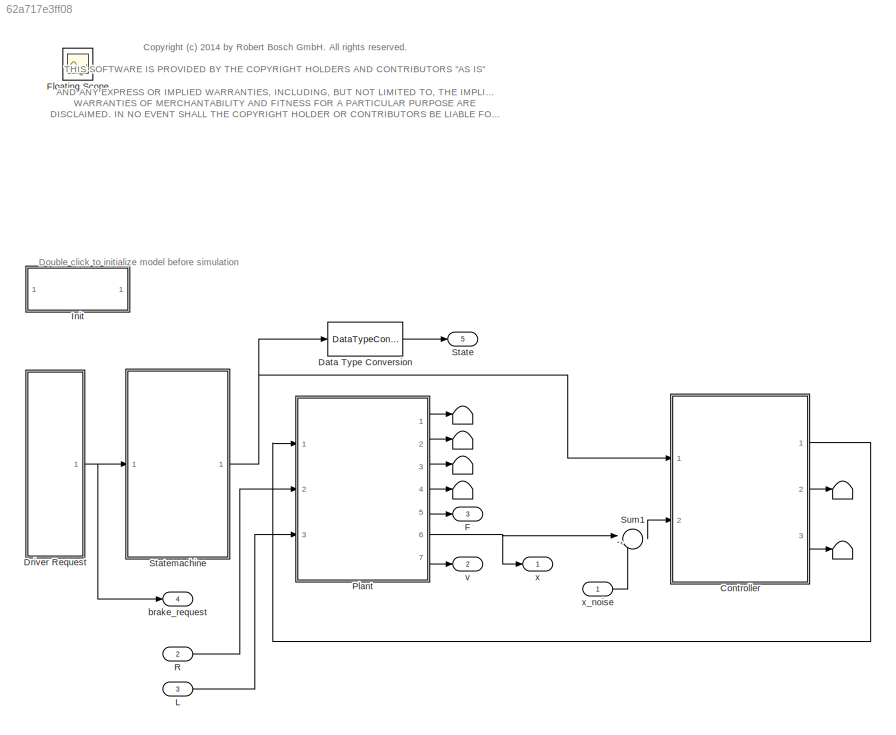
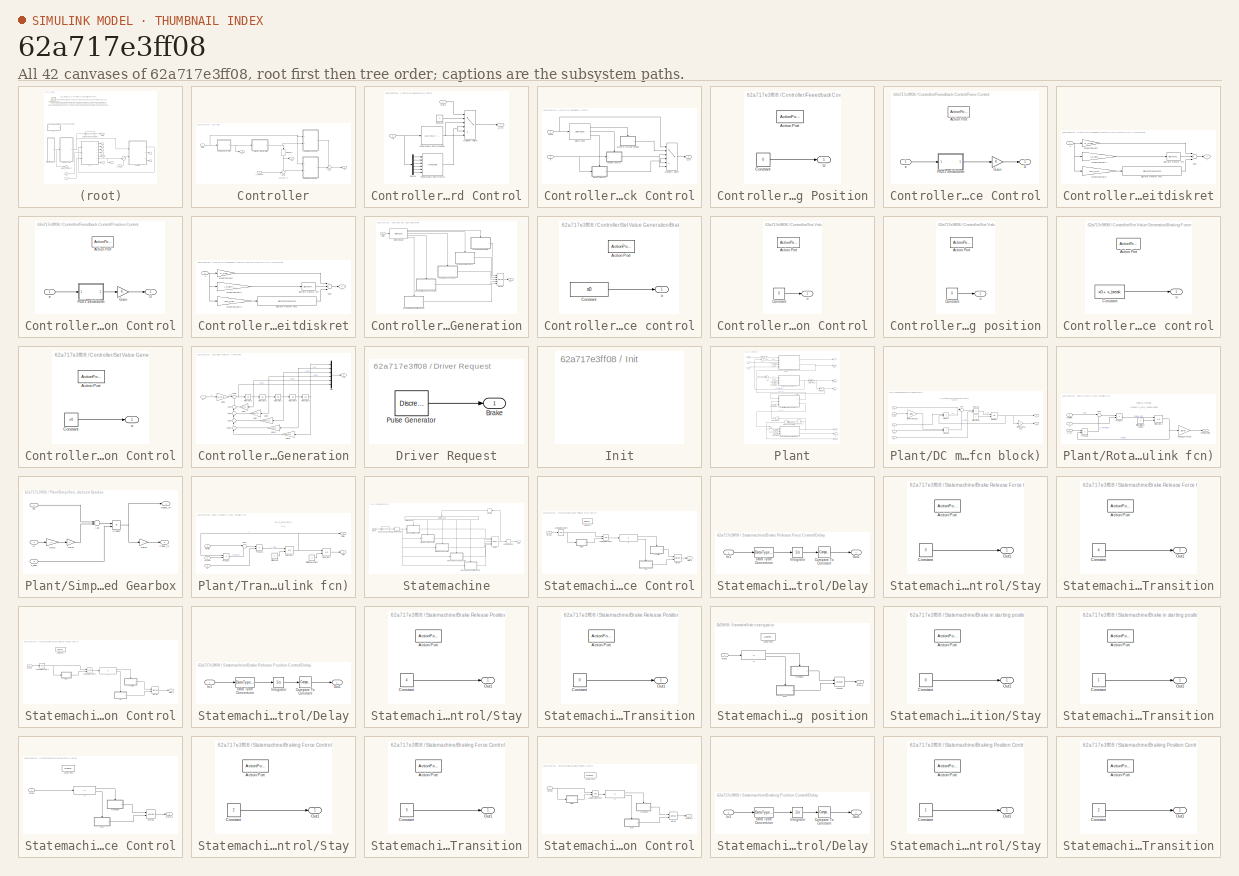
[diagram: thumbnail index - all 42 canvases of the model, root first then tree order]
MODEL slx_62a717e3ff08
KIND model
BLOCK [Terminator]   
BLOCK [Terminator]    
BLOCK [Terminator]     
BLOCK [Terminator]       
BLOCK [Terminator]         
BLOCK [Terminator]           
BLOCK [SubSystem] Controller
  FunctionWithSeparateData = off
  MaskHideContents = off
  MinAlgLoopOccurrences = off
  Opaque = off
  Ports = [2, 3]
  PropExecContextOutsideSubsystem = off
  RTWSystemCode = Auto
  RequestExecContextInheritance = off
BLOCK [SubSystem] Controller/Feedfoward Control
  FunctionWithSeparateData = off
  MaskHideContents = off
  MinAlgLoopOccurrences = off
  Opaque = off
  Ports = [2, 1]
  PropExecContextOutsideSubsystem = off
  RTWSystemCode = Auto
  RequestExecContextInheritance = off
BLOCK [Constant] Controller/Feedfoward Control/Constant
  Value = 0
BLOCK [Demux] Controller/Feedfoward Control/Demux
  DisplayOption = bar
  Outputs = 6
  Ports = [1, 6]
BLOCK [S-Function] Controller/Feedfoward Control/Feedforward Control Force
  EnableBusSupport = off
  FunctionName = InverseEMBforce
  Parameters = R,L,K,J,dvrot,m,dvtrans,cgear,i,cbreak,x0,xic
  Ports = [6, 1]
BLOCK [Fcn] Controller/Feedfoward Control/Feedforward Control Position
  Expr = (a(1)*u[6] + a(2)*u[5] + a(3)*u[4] + a(4)*u[3]  + a(5)*u[2] + a(6)*u[1] )/b
BLOCK [MultiPortSwitch] Controller/Feedfoward Control/Multiport Switch
  DataPortOrder = Zero-based contiguous
  InputSameDT = off
  Inputs = 5
  Ports = [6, 1]
  SaturateOnIntegerOverflow = off
  zeroidx = on
BLOCK [Inport] Controller/Feedfoward Control/State
  IconDisplay = Port number
BLOCK [Outport] Controller/Feedfoward Control/U_ffw
  IconDisplay = Port number
BLOCK [Inport] Controller/Feedfoward Control/yd
  IconDisplay = Port number
  Port = 2
BLOCK [SubSystem] Controller/Feeedback Control
  FunctionWithSeparateData = off
  MaskHideContents = off
  MinAlgLoopOccurrences = off
  Opaque = off
  Ports = [2, 1]
  PropExecContextOutsideSubsystem = off
  RTWSystemCode = Auto
  RequestExecContextInheritance = off
BLOCK [SubSystem] Controller/Feeedback Control/Brakin in starting Position
  FunctionWithSeparateData = off
  MaskHideContents = off
  MinAlgLoopOccurrences = off
  Opaque = off
  Ports = [0, 1, 0, 0, 0, 0, 0, 1]
  PropExecContextOutsideSubsystem = off
  RTWSystemCode = Auto
  RequestExecContextInheritance = off
  TreatAsAtomicUnit = on
BLOCK [ActionPort] Controller/Feeedback Control/Brakin in starting Position/Action Port
  ActionType = case
BLOCK [Constant] Controller/Feeedback Control/Brakin in starting Position/Constant
  Value = 0
BLOCK [Outport] Controller/Feeedback Control/Brakin in starting Position/U
  IconDisplay = Port number
BLOCK [SubSystem] Controller/Feeedback Control/Force Control
  FunctionWithSeparateData = off
  MaskHideContents = off
  MinAlgLoopOccurrences = off
  Opaque = off
  Ports = [1, 1, 0, 0, 0, 0, 0, 1]
  PropExecContextOutsideSubsystem = off
  RTWSystemCode = Auto
  RequestExecContextInheritance = off
  TreatAsAtomicUnit = on
BLOCK [ActionPort] Controller/Feeedback Control/Force Control/Action Port
  ActionType = case
  InitializeStates = reset
BLOCK [Gain] Controller/Feeedback Control/Force Control/Gain
  OutDataTypeStr = Inherit: Inherit via internal rule
  ParamDataTypeStr = Inherit: Inherit via internal rule
  SaturateOnIntegerOverflow = off
BLOCK [SubSystem] Controller/Feeedback Control/Force Control/PIDT1 zeitdiskret
  FunctionWithSeparateData = off
  MaskHideContents = off
  MinAlgLoopOccurrences = off
  Opaque = off
  Ports = [1, 1]
  PropExecContextOutsideSubsystem = off
  RTWSystemCode = Auto
  RequestExecContextInheritance = off
BLOCK [DiscreteTransferFcn] Controller/Feeedback Control/Force Control/PIDT1 zeitdiskret/Discrete Transfer Fcn
  Denominator = [1 -1]
  InputPortMap = u0
  Numerator = [1 1]
  Ports = [1, 1]
  SampleTime = T_abtast
BLOCK [DiscreteTransferFcn] Controller/Feeedback Control/Force Control/PIDT1 zeitdiskret/Discrete Transfer Fcn1
  Denominator = [1+1/tan(T_abtast/2/1e-3) 1-1/tan(T_abtast/2/1e-3)]
  InputPortMap = u0
  Numerator = [1 -1]
  Ports = [1, 1]
  SampleTime = T_abtast
BLOCK [Sum] Controller/Feeedback Control/Force Control/PIDT1 zeitdiskret/Sum
  InputSameDT = off
  Inputs = 3
  OutDataTypeStr = Inherit: Inherit via internal rule
  Ports = [3, 1]
  SaturateOnIntegerOverflow = off
BLOCK [Gain] Controller/Feeedback Control/Force Control/PIDT1 zeitdiskret/proportinal part
  Gain = P_Kraft
  OutDataTypeStr = Inherit: Inherit via internal rule
  ParamDataTypeStr = Inherit: Inherit via internal rule
  SaturateOnIntegerOverflow = off
BLOCK [Gain] Controller/Feeedback Control/Force Control/PIDT1 zeitdiskret/proportinal part1
  Gain = I_Kraft*T_abtast/2
  OutDataTypeStr = Inherit: Inherit via internal rule
  ParamDataTypeStr = Inherit: Inherit via internal rule
  SaturateOnIntegerOverflow = off
BLOCK [Gain] Controller/Feeedback Control/Force Control/PIDT1 zeitdiskret/proportinal part2
  Gain = 2*D_Kraft/T_abtast
  OutDataTypeStr = Inherit: Inherit via internal rule
  ParamDataTypeStr = Inherit: Inherit via internal rule
  SaturateOnIntegerOverflow = off
BLOCK [Inport] Controller/Feeedback Control/Force Control/PIDT1 zeitdiskret/u
  IconDisplay = Port number
BLOCK [Outport] Controller/Feeedback Control/Force Control/PIDT1 zeitdiskret/y
  IconDisplay = Port number
BLOCK [Outport] Controller/Feeedback Control/Force Control/U
  IconDisplay = Port number
BLOCK [Inport] Controller/Feeedback Control/Force Control/e
  IconDisplay = Port number
BLOCK [MultiPortSwitch] Controller/Feeedback Control/Multiport Switch
  DataPortOrder = Zero-based contiguous
  InputSameDT = off
  Inputs = 5
  Ports = [6, 1]
  SaturateOnIntegerOverflow = off
  zeroidx = on
BLOCK [SubSystem] Controller/Feeedback Control/Position Control
  FunctionWithSeparateData = off
  MaskHideContents = off
  MinAlgLoopOccurrences = off
  Opaque = off
  Ports = [1, 1, 0, 0, 0, 0, 0, 1]
  PropExecContextOutsideSubsystem = off
  RTWSystemCode = Auto
  RequestExecContextInheritance = off
  TreatAsAtomicUnit = on
BLOCK [ActionPort] Controller/Feeedback Control/Position Control/Action Port
  ActionType = case
  InitializeStates = reset
BLOCK [Gain] Controller/Feeedback Control/Position Control/Gain
  OutDataTypeStr = Inherit: Inherit via internal rule
  ParamDataTypeStr = Inherit: Inherit via internal rule
  SaturateOnIntegerOverflow = off
BLOCK [SubSystem] Controller/Feeedback Control/Position Control/PIDT1 zeitdiskret
  FunctionWithSeparateData = off
  MaskHideContents = off
  MinAlgLoopOccurrences = off
  Opaque = off
  Ports = [1, 1]
  PropExecContextOutsideSubsystem = off
  RTWSystemCode = Auto
  RequestExecContextInheritance = off
BLOCK [DiscreteTransferFcn] Controller/Feeedback Control/Position Control/PIDT1 zeitdiskret/Discrete Transfer Fcn
  Denominator = [1 -1]
  InputPortMap = u0
  Numerator = [1 1]
  Ports = [1, 1]
  SampleTime = T_abtast
BLOCK [DiscreteTransferFcn] Controller/Feeedback Control/Position Control/PIDT1 zeitdiskret/Discrete Transfer Fcn1
  Denominator = [1+1/tan(T_abtast/2/1e-3) 1-1/tan(T_abtast/2/1e-3)]
  InputPortMap = u0
  Numerator = [1 -1]
  Ports = [1, 1]
  SampleTime = T_abtast
BLOCK [Sum] Controller/Feeedback Control/Position Control/PIDT1 zeitdiskret/Sum
  InputSameDT = off
  Inputs = 3
  OutDataTypeStr = Inherit: Inherit via internal rule
  Ports = [3, 1]
  SaturateOnIntegerOverflow = off
BLOCK [Gain] Controller/Feeedback Control/Position Control/PIDT1 zeitdiskret/proportinal part
  Gain = P_Pos
  OutDataTypeStr = Inherit: Inherit via internal rule
  ParamDataTypeStr = Inherit: Inherit via internal rule
  SaturateOnIntegerOverflow = off
BLOCK [Gain] Controller/Feeedback Control/Position Control/PIDT1 zeitdiskret/proportinal part1
  Gain = I_Pos*T_abtast/2
  OutDataTypeStr = Inherit: Inherit via internal rule
  ParamDataTypeStr = Inherit: Inherit via internal rule
  SaturateOnIntegerOverflow = off
BLOCK [Gain] Controller/Feeedback Control/Position Control/PIDT1 zeitdiskret/proportinal part2
  Gain = 2*D_Pos/T_abtast
  OutDataTypeStr = Inherit: Inherit via internal rule
  ParamDataTypeStr = Inherit: Inherit via internal rule
  SaturateOnIntegerOverflow = off
BLOCK [Inport] Controller/Feeedback Control/Position Control/PIDT1 zeitdiskret/u
  IconDisplay = Port number
BLOCK [Outport] Controller/Feeedback Control/Position Control/PIDT1 zeitdiskret/y
  IconDisplay = Port number
BLOCK [Outport] Controller/Feeedback Control/Position Control/U
  IconDisplay = Port number
BLOCK [Inport] Controller/Feeedback Control/Position Control/e
  IconDisplay = Port number
BLOCK [Inport] Controller/Feeedback Control/State
  IconDisplay = Port number
BLOCK [SwitchCase] Controller/Feeedback Control/Switch Case
  CaseConditions = {0,[1,4],[2,3]}
  Ports = [1, 3]
  SampleTime = T_abtast
  ShowDefaultCase = off
BLOCK [Outport] Controller/Feeedback Control/U_fb
  IconDisplay = Port number
BLOCK [Inport] Controller/Feeedback Control/e
  IconDisplay = Port number
  Port = 2
BLOCK [Selector] Controller/Selector1
  IndexOptions = Index vector (dialog)
  Indices = [1]
  InputPortWidth = 6
  OutputSizes = 1
  Ports = [1, 1]
BLOCK [SubSystem] Controller/Set Value Generation
  FunctionWithSeparateData = off
  MaskHideContents = off
  MinAlgLoopOccurrences = off
  Opaque = off
  Ports = [1, 1]
  PropExecContextOutsideSubsystem = off
  RTWSystemCode = Auto
  RequestExecContextInheritance = off
BLOCK [SubSystem] Controller/Set Value Generation/Brake Release Force control
  FunctionWithSeparateData = off
  MaskHideContents = off
  MinAlgLoopOccurrences = off
  Opaque = off
  Ports = [0, 1, 0, 0, 0, 0, 0, 1]
  PropExecContextOutsideSubsystem = off
  RTWSystemCode = Auto
  RequestExecContextInheritance = off
  TreatAsAtomicUnit = on
BLOCK [ActionPort] Controller/Set Value Generation/Brake Release Force control/Action Port
  ActionType = case
BLOCK [Constant] Controller/Set Value Generation/Brake Release Force control/Constant
  Value = x0
BLOCK [Outport] Controller/Set Value Generation/Brake Release Force control/u
  IconDisplay = Port number
BLOCK [SubSystem] Controller/Set Value Generation/Brake Release Position Control
  FunctionWithSeparateData = off
  MaskHideContents = off
  MinAlgLoopOccurrences = off
  Opaque = off
  Ports = [0, 1, 0, 0, 0, 0, 0, 1]
  PropExecContextOutsideSubsystem = off
  RTWSystemCode = Auto
  RequestExecContextInheritance = off
  TreatAsAtomicUnit = on
BLOCK [ActionPort] Controller/Set Value Generation/Brake Release Position Control/Action Port
  ActionType = case
BLOCK [Constant] Controller/Set Value Generation/Brake Release Position Control/Constant
  Value = 0
BLOCK [Outport] Controller/Set Value Generation/Brake Release Position Control/u
  IconDisplay = Port number
BLOCK [SubSystem] Controller/Set Value Generation/Brake in starting position
  FunctionWithSeparateData = off
  MaskHideContents = off
  MinAlgLoopOccurrences = off
  Opaque = off
  Ports = [0, 1, 0, 0, 0, 0, 0, 1]
  PropExecContextOutsideSubsystem = off
  RTWSystemCode = Auto
  RequestExecContextInheritance = off
  TreatAsAtomicUnit = on
BLOCK [ActionPort] Controller/Set Value Generation/Brake in starting position/Action Port
  ActionType = case
BLOCK [Constant] Controller/Set Value Generation/Brake in starting position/Constant
  Value = 0
BLOCK [Outport] Controller/Set Value Generation/Brake in starting position/u
  IconDisplay = Port number
BLOCK [SubSystem] Controller/Set Value Generation/Braking Force control
  FunctionWithSeparateData = off
  MaskHideContents = off
  MinAlgLoopOccurrences = off
  Opaque = off
  Ports = [0, 1, 0, 0, 0, 0, 0, 1]
  PropExecContextOutsideSubsystem = off
  RTWSystemCode = Auto
  RequestExecContextInheritance = off
  TreatAsAtomicUnit = on
BLOCK [ActionPort] Controller/Set Value Generation/Braking Force control/Action Port
  ActionType = case
BLOCK [Constant] Controller/Set Value Generation/Braking Force control/Constant
  Value = x0 + x_break
BLOCK [Outport] Controller/Set Value Generation/Braking Force control/u
  IconDisplay = Port number
BLOCK [SubSystem] Controller/Set Value Generation/Braking Position Control
  FunctionWithSeparateData = off
  MaskHideContents = off
  MinAlgLoopOccurrences = off
  Opaque = off
  Ports = [0, 1, 0, 0, 0, 0, 0, 1]
  PropExecContextOutsideSubsystem = off
  RTWSystemCode = Auto
  RequestExecContextInheritance = off
  TreatAsAtomicUnit = on
BLOCK [ActionPort] Controller/Set Value Generation/Braking Position Control/Action Port
  ActionType = case
BLOCK [Constant] Controller/Set Value Generation/Braking Position Control/Constant
  Value = x0
BLOCK [Outport] Controller/Set Value Generation/Braking Position Control/u
  IconDisplay = Port number
BLOCK [Merge] Controller/Set Value Generation/Merge
  Inputs = 5
  Ports = [5, 1]
BLOCK [Inport] Controller/Set Value Generation/State
  IconDisplay = Port number
BLOCK [SwitchCase] Controller/Set Value Generation/Switch Set Value
  CaseConditions = {0,1,2,3,4}
  Ports = [1, 5]
  ShowDefaultCase = off
BLOCK [Outport] Controller/Set Value Generation/w
  IconDisplay = Port number
BLOCK [Inport] Controller/State
  IconDisplay = Port number
BLOCK [Sum] Controller/Sum
  IconShape = round
  InputSameDT = off
  Inputs = ++|
  OutDataTypeStr = Inherit: Inherit via internal rule
  Ports = [2, 1]
  SaturateOnIntegerOverflow = off
BLOCK [Sum] Controller/Sum1
  IconShape = round
  InputSameDT = off
  Inputs = +-|
  OutDataTypeStr = Inherit: Inherit via internal rule
  Ports = [2, 1]
  SaturateOnIntegerOverflow = off
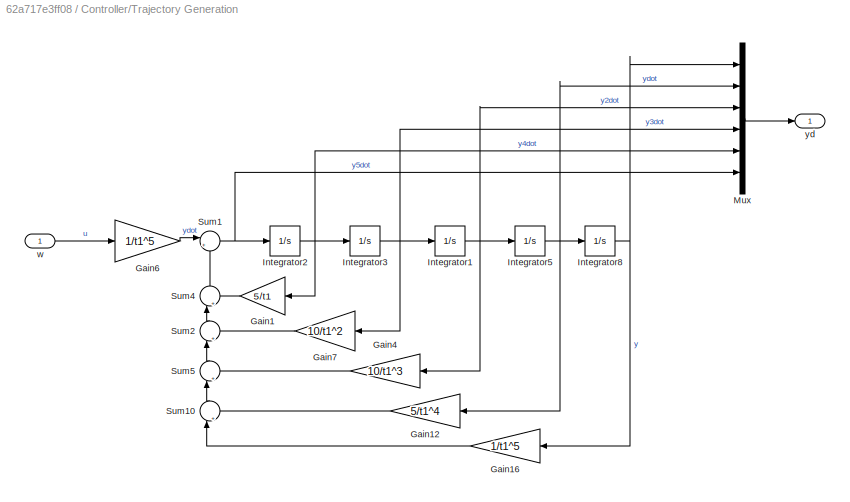
BLOCK [SubSystem] Controller/Trajectory Generation
  FunctionWithSeparateData = off
  MaskHideContents = off
  MinAlgLoopOccurrences = off
  Opaque = off
  Ports = [1, 1]
  PropExecContextOutsideSubsystem = off
  RTWSystemCode = Auto
  RequestExecContextInheritance = off
BLOCK [Gain] Controller/Trajectory Generation/Gain1
  Gain = 5/t1
  OutDataTypeStr = Inherit: Inherit via internal rule
  ParamDataTypeStr = Inherit: Inherit via internal rule
  SaturateOnIntegerOverflow = off
BLOCK [Gain] Controller/Trajectory Generation/Gain12
  Gain = 5/t1^4
  OutDataTypeStr = Inherit: Inherit via internal rule
  ParamDataTypeStr = Inherit: Inherit via internal rule
  SaturateOnIntegerOverflow = off
BLOCK [Gain] Controller/Trajectory Generation/Gain16
  Gain = 1/t1^5
  OutDataTypeStr = Inherit: Inherit via internal rule
  ParamDataTypeStr = Inherit: Inherit via internal rule
  SaturateOnIntegerOverflow = off
BLOCK [Gain] Controller/Trajectory Generation/Gain4
  Gain = 10/t1^3
  OutDataTypeStr = Inherit: Inherit via internal rule
  ParamDataTypeStr = Inherit: Inherit via internal rule
  SaturateOnIntegerOverflow = off
BLOCK [Gain] Controller/Trajectory Generation/Gain6
  Gain = 1/t1^5
  OutDataTypeStr = Inherit: Inherit via internal rule
  ParamDataTypeStr = Inherit: Inherit via internal rule
  SaturateOnIntegerOverflow = off
BLOCK [Gain] Controller/Trajectory Generation/Gain7
  Gain = 10/t1^2
  OutDataTypeStr = Inherit: Inherit via internal rule
  ParamDataTypeStr = Inherit: Inherit via internal rule
  SaturateOnIntegerOverflow = off
BLOCK [Integrator] Controller/Trajectory Generation/Integrator1
  Ports = [1, 1]
BLOCK [Integrator] Controller/Trajectory Generation/Integrator2
  Ports = [1, 1]
BLOCK [Integrator] Controller/Trajectory Generation/Integrator3
  Ports = [1, 1]
BLOCK [Integrator] Controller/Trajectory Generation/Integrator5
  Ports = [1, 1]
BLOCK [Integrator] Controller/Trajectory Generation/Integrator8
  Ports = [1, 1]
BLOCK [Mux] Controller/Trajectory Generation/Mux
  DisplayOption = bar
  Inputs = 6
  Ports = [6, 1]
BLOCK [Sum] Controller/Trajectory Generation/Sum1
  IconShape = round
  InputSameDT = off
  Inputs = |+-
  OutDataTypeStr = Inherit: Inherit via internal rule
  Ports = [2, 1]
  SaturateOnIntegerOverflow = off
BLOCK [Sum] Controller/Trajectory Generation/Sum10
  IconShape = round
  InputSameDT = off
  Inputs = |++
  OutDataTypeStr = Inherit: Inherit via internal rule
  Ports = [2, 1]
  SaturateOnIntegerOverflow = off
BLOCK [Sum] Controller/Trajectory Generation/Sum2
  IconShape = round
  InputSameDT = off
  Inputs = |++
  OutDataTypeStr = Inherit: Inherit via internal rule
  Ports = [2, 1]
  SaturateOnIntegerOverflow = off
BLOCK [Sum] Controller/Trajectory Generation/Sum4
  IconShape = round
  InputSameDT = off
  Inputs = |++
  OutDataTypeStr = Inherit: Inherit via internal rule
  Ports = [2, 1]
  SaturateOnIntegerOverflow = off
BLOCK [Sum] Controller/Trajectory Generation/Sum5
  IconShape = round
  InputSameDT = off
  Inputs = |++
  OutDataTypeStr = Inherit: Inherit via internal rule
  Ports = [2, 1]
  SaturateOnIntegerOverflow = off
BLOCK [Inport] Controller/Trajectory Generation/w
  IconDisplay = Port number
BLOCK [Outport] Controller/Trajectory Generation/yd
  IconDisplay = Port number
BLOCK [Outport] Controller/U
  IconDisplay = Port number
BLOCK [Outport] Controller/w
  IconDisplay = Port number
  Port = 2
BLOCK [Inport] Controller/y_Sensor
  IconDisplay = Port number
  Port = 2
BLOCK [Outport] Controller/yd
  IconDisplay = Port number
  Port = 3
BLOCK [DataTypeConversion] Data Type Conversion
  RndMeth = Floor
  SaturateOnIntegerOverflow = off
BLOCK [SubSystem] Driver Request
  FunctionWithSeparateData = off
  MaskHideContents = off
  MinAlgLoopOccurrences = off
  Opaque = off
  Ports = [0, 1]
  PropExecContextOutsideSubsystem = off
  RTWSystemCode = Auto
  RequestExecContextInheritance = off
BLOCK [Outport] Driver Request/Brake
  IconDisplay = Port number
BLOCK [DiscretePulseGenerator] Driver Request/Pulse Generator
  Period = 1
  PhaseDelay = 0.01
  Ports = [0, 1]
  PulseType = Time based
  PulseWidth = 50
BLOCK [Outport] F
  IconDisplay = Port number
  Port = 3
BLOCK [Scope] Floating Scope
  DataFormat = StructureWithTime
  Floating = off
  IOType = viewer
  LimitDataPoints = off
  NumInputPorts = 1
  Ports = []
  SampleTime = 0
  ShowLegends = off
BLOCK [SubSystem] Init
  FunctionWithSeparateData = off
  MaskHideContents = off
  MinAlgLoopOccurrences = off
  Opaque = off
  OpenFcn = load('EMB_Variables.mat');
  Ports = []
  PropExecContextOutsideSubsystem = off
  RTWSystemCode = Auto
  RequestExecContextInheritance = off
BLOCK [Inport] L
  IconDisplay = Port number
  Port = 3
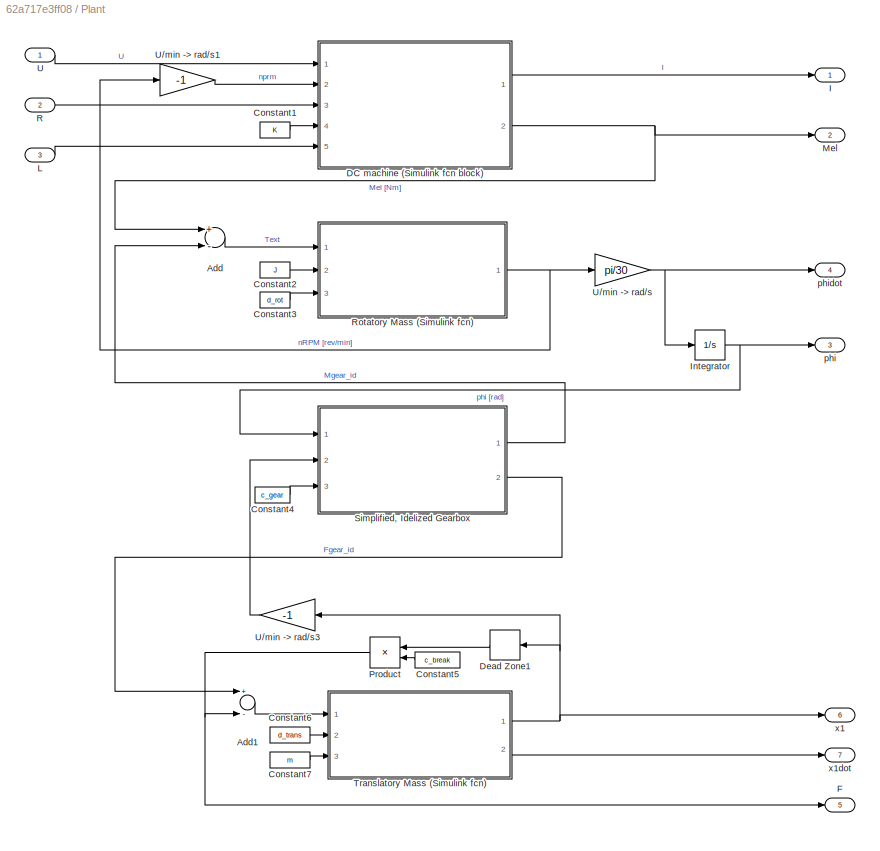
BLOCK [SubSystem] Plant
  FunctionWithSeparateData = off
  MaskHideContents = off
  MinAlgLoopOccurrences = off
  Opaque = off
  Ports = [3, 7]
  PropExecContextOutsideSubsystem = off
  RTWSystemCode = Auto
  RequestExecContextInheritance = off
BLOCK [Sum] Plant/Add
  InputSameDT = off
  Inputs = +-
  OutDataTypeStr = Inherit: Inherit via internal rule
  Ports = [2, 1]
  SaturateOnIntegerOverflow = off
BLOCK [Sum] Plant/Add1
  InputSameDT = off
  Inputs = +-
  OutDataTypeStr = Inherit: Inherit via internal rule
  Ports = [2, 1]
  SaturateOnIntegerOverflow = off
BLOCK [Constant] Plant/Constant1
  Value = K
BLOCK [Constant] Plant/Constant2
  Value = J
BLOCK [Constant] Plant/Constant3
  Value = d_rot
BLOCK [Constant] Plant/Constant4
  Value = c_gear
BLOCK [Constant] Plant/Constant5
  Value = c_break
BLOCK [Constant] Plant/Constant6
  Value = d_trans
BLOCK [Constant] Plant/Constant7
  Value = m
BLOCK [SubSystem] Plant/DC machine (Simulink fcn block)
  FunctionWithSeparateData = off
  MaskHideContents = off
  MinAlgLoopOccurrences = off
  Opaque = off
  Ports = [5, 2]
  PropExecContextOutsideSubsystem = off
  RTWSystemCode = Auto
  RequestExecContextInheritance = off
BLOCK [Outport] Plant/DC machine (Simulink fcn block)/I
  IconDisplay = Port number
BLOCK [Integrator] Plant/DC machine (Simulink fcn block)/Integrator
  InitialConditionSource = external
  Ports = [2, 1]
BLOCK [Inport] Plant/DC machine (Simulink fcn block)/K
  IconDisplay = Port number
  Port = 4
BLOCK [Inport] Plant/DC machine (Simulink fcn block)/L
  IconDisplay = Port number
  Port = 5
BLOCK [Product] Plant/DC machine (Simulink fcn block)/Product
  InputSameDT = off
  OutDataTypeStr = Inherit: Inherit via internal rule
  Ports = [2, 1]
  RndMeth = Floor
  SaturateOnIntegerOverflow = off
BLOCK [Product] Plant/DC machine (Simulink fcn block)/Product1
  InputSameDT = off
  OutDataTypeStr = Inherit: Inherit via internal rule
  Ports = [2, 1]
  RndMeth = Floor
  SaturateOnIntegerOverflow = off
BLOCK [Product] Plant/DC machine (Simulink fcn block)/Product2
  InputSameDT = off
  Inputs = */
  OutDataTypeStr = Inherit: Inherit via internal rule
  Ports = [2, 1]
  RndMeth = Floor
  SaturateOnIntegerOverflow = off
BLOCK [Inport] Plant/DC machine (Simulink fcn block)/R
  IconDisplay = Port number
  Port = 3
BLOCK [Sum] Plant/DC machine (Simulink fcn block)/Sum
  IconShape = round
  InputSameDT = off
  Inputs = |+--
  OutDataTypeStr = Inherit: Inherit via internal rule
  Ports = [3, 1]
  SaturateOnIntegerOverflow = off
BLOCK [Outport] Plant/DC machine (Simulink fcn block)/T
  IconDisplay = Port number
  Port = 2
BLOCK [Inport] Plant/DC machine (Simulink fcn block)/V
  IconDisplay = Port number
BLOCK [Constant] Plant/DC machine (Simulink fcn block)/initial current [A]
  Value = 0
BLOCK [Gain] Plant/DC machine (Simulink fcn block)/n [rpm] -> omega [1//s]
  Gain = pi/30
  OutDataTypeStr = Inherit: Inherit via internal rule
  ParamDataTypeStr = Inherit: Inherit via internal rule
  SaturateOnIntegerOverflow = off
BLOCK [Gain] Plant/DC machine (Simulink fcn block)/n [rpm] -> omega [1//s]1
  Gain = K
  OutDataTypeStr = Inherit: Inherit via internal rule
  ParamDataTypeStr = Inherit: Inherit via internal rule
  SaturateOnIntegerOverflow = off
BLOCK [Inport] Plant/DC machine (Simulink fcn block)/n_rpm
  IconDisplay = Port number
  Port = 2
BLOCK [DeadZone] Plant/Dead Zone1
  LowerValue = -inf
  UpperValue = x0
BLOCK [Outport] Plant/F
  IconDisplay = Port number
  Port = 5
BLOCK [Outport] Plant/I
  IconDisplay = Port number
BLOCK [Integrator] Plant/Integrator
  Ports = [1, 1]
BLOCK [Inport] Plant/L
  IconDisplay = Port number
  Port = 3
BLOCK [Outport] Plant/Mel
  IconDisplay = Port number
  Port = 2
BLOCK [Product] Plant/Product
  InputSameDT = off
  OutDataTypeStr = Inherit: Inherit via internal rule
  Ports = [2, 1]
  RndMeth = Floor
  SaturateOnIntegerOverflow = off
BLOCK [Inport] Plant/R
  IconDisplay = Port number
  Port = 2
BLOCK [SubSystem] Plant/Rotatory Mass (Simulink fcn)
  FunctionWithSeparateData = off
  MaskHideContents = off
  MinAlgLoopOccurrences = off
  Opaque = off
  Ports = [3, 1]
  PropExecContextOutsideSubsystem = off
  RTWSystemCode = Auto
  RequestExecContextInheritance = off
BLOCK [Integrator] Plant/Rotatory Mass (Simulink fcn)/Integrator1
  InitialConditionSource = external
  Ports = [2, 1]
BLOCK [Inport] Plant/Rotatory Mass (Simulink fcn)/J
  IconDisplay = Port number
  Port = 2
BLOCK [Product] Plant/Rotatory Mass (Simulink fcn)/Product
  InputSameDT = off
  Inputs = */
  OutDataTypeStr = Inherit: Inherit via internal rule
  Ports = [2, 1]
  RndMeth = Floor
  SaturateOnIntegerOverflow = off
BLOCK [Product] Plant/Rotatory Mass (Simulink fcn)/Product1
  InputSameDT = off
  OutDataTypeStr = Inherit: Inherit via internal rule
  Ports = [2, 1]
  RndMeth = Floor
  SaturateOnIntegerOverflow = off
BLOCK [Sum] Plant/Rotatory Mass (Simulink fcn)/Sum
  IconShape = round
  InputSameDT = off
  Inputs = |+-
  OutDataTypeStr = Inherit: Inherit via internal rule
  Ports = [2, 1]
  SaturateOnIntegerOverflow = off
BLOCK [Inport] Plant/Rotatory Mass (Simulink fcn)/Text [Nm]
  IconDisplay = Port number
BLOCK [Inport] Plant/Rotatory Mass (Simulink fcn)/d_rot
  IconDisplay = Port number
  Port = 3
BLOCK [Constant] Plant/Rotatory Mass (Simulink fcn)/initial rotational speed
  Value = 0
BLOCK [Outport] Plant/Rotatory Mass (Simulink fcn)/nRPM[rev//min]
  IconDisplay = Port number
BLOCK [Gain] Plant/Rotatory Mass (Simulink fcn)/omega [1//s] -> n [rpm]
  Gain = 30/pi
  OutDataTypeStr = Inherit: Inherit via internal rule
  ParamDataTypeStr = Inherit: Inherit via internal rule
  SaturateOnIntegerOverflow = off
BLOCK [SubSystem] Plant/Simplified, Idelized Gearbox
  FunctionWithSeparateData = off
  MaskHideContents = off
  MinAlgLoopOccurrences = off
  Opaque = off
  Ports = [3, 2]
  PropExecContextOutsideSubsystem = off
  RTWSystemCode = Auto
  RequestExecContextInheritance = off
BLOCK [Sum] Plant/Simplified, Idelized Gearbox/Add
  InputSameDT = off
  Inputs = +-
  OutDataTypeStr = Inherit: Inherit via internal rule
  Ports = [2, 1]
  SaturateOnIntegerOverflow = off
BLOCK [Outport] Plant/Simplified, Idelized Gearbox/Fgear_id
  IconDisplay = Port number
  Port = 2
BLOCK [Gain] Plant/Simplified, Idelized Gearbox/Gain1
  Gain = -1
  OutDataTypeStr = Inherit: Inherit via internal rule
  ParamDataTypeStr = Inherit: Inherit via internal rule
  SaturateOnIntegerOverflow = off
BLOCK [Gain] Plant/Simplified, Idelized Gearbox/Gain3
  Gain = i
  OutDataTypeStr = Inherit: Inherit via internal rule
  ParamDataTypeStr = Inherit: Inherit via internal rule
  SaturateOnIntegerOverflow = off
BLOCK [Gain] Plant/Simplified, Idelized Gearbox/Gain5
  Gain = i
  OutDataTypeStr = Inherit: Inherit via internal rule
  ParamDataTypeStr = Inherit: Inherit via internal rule
  SaturateOnIntegerOverflow = off
BLOCK [Outport] Plant/Simplified, Idelized Gearbox/Mgear_id
  IconDisplay = Port number
BLOCK [Product] Plant/Simplified, Idelized Gearbox/Product
  InputSameDT = off
  OutDataTypeStr = Inherit: Inherit via internal rule
  Ports = [2, 1]
  RndMeth = Floor
  SaturateOnIntegerOverflow = off
BLOCK [Inport] Plant/Simplified, Idelized Gearbox/c_gear
  IconDisplay = Port number
  Port = 3
BLOCK [Inport] Plant/Simplified, Idelized Gearbox/phi
  IconDisplay = Port number
BLOCK [Inport] Plant/Simplified, Idelized Gearbox/x1
  IconDisplay = Port number
  Port = 2
BLOCK [SubSystem] Plant/Translatory Mass (Simulink fcn)
  FunctionWithSeparateData = off
  MaskHideContents = off
  MinAlgLoopOccurrences = off
  Opaque = off
  Ports = [3, 2]
  PropExecContextOutsideSubsystem = off
  RTWSystemCode = Auto
  RequestExecContextInheritance = off
BLOCK [Inport] Plant/Translatory Mass (Simulink fcn)/Fext [N]
  IconDisplay = Port number
BLOCK [Integrator] Plant/Translatory Mass (Simulink fcn)/Integrator1
  InitialConditionSource = external
  Ports = [2, 1]
BLOCK [Integrator] Plant/Translatory Mass (Simulink fcn)/Integrator2
  InitialConditionSource = external
  Ports = [2, 1]
BLOCK [Product] Plant/Translatory Mass (Simulink fcn)/Product
  InputSameDT = off
  OutDataTypeStr = Inherit: Inherit via internal rule
  Ports = [2, 1]
  RndMeth = Floor
  SaturateOnIntegerOverflow = off
BLOCK [Product] Plant/Translatory Mass (Simulink fcn)/Product1
  InputSameDT = off
  Inputs = */
  OutDataTypeStr = Inherit: Inherit via internal rule
  Ports = [2, 1]
  RndMeth = Floor
  SaturateOnIntegerOverflow = off
BLOCK [Sum] Plant/Translatory Mass (Simulink fcn)/Sum
  IconShape = round
  InputSameDT = off
  Inputs = |+-
  OutDataTypeStr = Inherit: Inherit via internal rule
  Ports = [2, 1]
  SaturateOnIntegerOverflow = off
BLOCK [Inport] Plant/Translatory Mass (Simulink fcn)/d_trans
  IconDisplay = Port number
  Port = 2
BLOCK [Constant] Plant/Translatory Mass (Simulink fcn)/initial displacement
  Value = 0
BLOCK [Constant] Plant/Translatory Mass (Simulink fcn)/initial velocity 
  Value = 0
BLOCK [Inport] Plant/Translatory Mass (Simulink fcn)/m
  IconDisplay = Port number
  Port = 3
BLOCK [Outport] Plant/Translatory Mass (Simulink fcn)/v[m//s]
  IconDisplay = Port number
  Port = 2
BLOCK [Outport] Plant/Translatory Mass (Simulink fcn)/x [m]
  IconDisplay = Port number
BLOCK [Inport] Plant/U
  IconDisplay = Port number
BLOCK [Gain] Plant/U//min -> rad//s
  Gain = pi/30
  OutDataTypeStr = Inherit: Inherit via internal rule
  ParamDataTypeStr = Inherit: Inherit via internal rule
  SaturateOnIntegerOverflow = off
BLOCK [Gain] Plant/U//min -> rad//s1
  Gain = -1
  OutDataTypeStr = Inherit: Inherit via internal rule
  ParamDataTypeStr = Inherit: Inherit via internal rule
  SaturateOnIntegerOverflow = off
BLOCK [Gain] Plant/U//min -> rad//s3
  Gain = -1
  OutDataTypeStr = Inherit: Inherit via internal rule
  ParamDataTypeStr = Inherit: Inherit via internal rule
  SaturateOnIntegerOverflow = off
BLOCK [Outport] Plant/phi
  IconDisplay = Port number
  Port = 3
BLOCK [Outport] Plant/phidot
  IconDisplay = Port number
  Port = 4
BLOCK [Outport] Plant/x1
  IconDisplay = Port number
  Port = 6
BLOCK [Outport] Plant/x1dot
  IconDisplay = Port number
  Port = 7
BLOCK [Inport] R
  IconDisplay = Port number
  Port = 2
BLOCK [Outport] State
  IconDisplay = Port number
  Port = 5
BLOCK [SubSystem] Statemachine
  FunctionWithSeparateData = off
  MaskHideContents = off
  MinAlgLoopOccurrences = off
  Opaque = off
  Ports = [1, 1]
  PropExecContextOutsideSubsystem = off
  RTWSystemCode = Auto
  RequestExecContextInheritance = off
BLOCK [Inport] Statemachine/Brake
  IconDisplay = Port number
BLOCK [SubSystem] Statemachine/Brake Release Force Control
  FunctionWithSeparateData = off
  MaskHideContents = off
  MinAlgLoopOccurrences = off
  Opaque = off
  Ports = [1, 1, 0, 0, 0, 0, 0, 1]
  PropExecContextOutsideSubsystem = off
  RTWSystemCode = Auto
  RequestExecContextInheritance = off
  TreatAsAtomicUnit = on
BLOCK [ActionPort] Statemachine/Brake Release Force Control/Action Port
  ActionType = case
  InitializeStates = reset
BLOCK [Inport] Statemachine/Brake Release Force Control/Break
  IconDisplay = Port number
BLOCK [SubSystem] Statemachine/Brake Release Force Control/Delay
  FunctionWithSeparateData = off
  MaskHideContents = off
  MinAlgLoopOccurrences = off
  Opaque = off
  Ports = [1, 1]
  PropExecContextOutsideSubsystem = off
  RTWSystemCode = Auto
  RequestExecContextInheritance = off
BLOCK [Reference] Statemachine/Brake Release Force Control/Delay/Compare To Constant  REF=simulink/Logic and Bit
Operations/Compare
To Constant
  OutDataTypeStr = uint8
  Ports = [1, 1]
  SourceBlock = simulink/Logic and Bit\nOperations/Compare\nTo Constant
  SourceType = Compare To Constant
  ZeroCross = off
  const = t0
  relop = >=
BLOCK [DataTypeConversion] Statemachine/Brake Release Force Control/Delay/Data Type Conversion
  RndMeth = Floor
  SaturateOnIntegerOverflow = off
BLOCK [Inport] Statemachine/Brake Release Force Control/Delay/In1
  IconDisplay = Port number
BLOCK [Integrator] Statemachine/Brake Release Force Control/Delay/Integrator
  Ports = [1, 1]
BLOCK [Outport] Statemachine/Brake Release Force Control/Delay/Out1
  IconDisplay = Port number
BLOCK [If] Statemachine/Brake Release Force Control/If
  ElseIfExpressions = u1 == 0
  IfExpression = u1 == 1
  Ports = [1, 2]
  ShowElse = off
BLOCK [Logic] Statemachine/Brake Release Force Control/Logical Operator1
  AllPortsSameDT = off
  OutDataTypeStr = boolean
  Ports = [2, 1]
BLOCK [Logic] Statemachine/Brake Release Force Control/Logical Operator2
  AllPortsSameDT = off
  Operator = NOT
  OutDataTypeStr = boolean
  Ports = [1, 1]
BLOCK [Merge] Statemachine/Brake Release Force Control/Merge
  Ports = [2, 1]
BLOCK [Outport] Statemachine/Brake Release Force Control/State_k
  IconDisplay = Port number
BLOCK [SubSystem] Statemachine/Brake Release Force Control/Stay
  FunctionWithSeparateData = off
  MaskHideContents = off
  MinAlgLoopOccurrences = off
  Opaque = off
  Ports = [0, 1, 0, 0, 0, 0, 0, 1]
  PropExecContextOutsideSubsystem = off
  RTWSystemCode = Auto
  RequestExecContextInheritance = off
  TreatAsAtomicUnit = on
BLOCK [ActionPort] Statemachine/Brake Release Force Control/Stay/Action Port
  ActionType = elseif
BLOCK [Constant] Statemachine/Brake Release Force Control/Stay/Constant
  OutDataTypeStr = uint8
  Value = 3
BLOCK [Outport] Statemachine/Brake Release Force Control/Stay/Out1
  IconDisplay = Port number
BLOCK [SubSystem] Statemachine/Brake Release Force Control/Transition
  FunctionWithSeparateData = off
  MaskHideContents = off
  MinAlgLoopOccurrences = off
  Opaque = off
  Ports = [0, 1, 0, 0, 0, 0, 0, 1]
  PropExecContextOutsideSubsystem = off
  RTWSystemCode = Auto
  RequestExecContextInheritance = off
  TreatAsAtomicUnit = on
BLOCK [ActionPort] Statemachine/Brake Release Force Control/Transition/Action Port
  ActionType = then
BLOCK [Constant] Statemachine/Brake Release Force Control/Transition/Constant
  OutDataTypeStr = uint8
  Value = 4
BLOCK [Outport] Statemachine/Brake Release Force Control/Transition/Out1
  IconDisplay = Port number
BLOCK [SubSystem] Statemachine/Brake Release Position Control
  FunctionWithSeparateData = off
  MaskHideContents = off
  MinAlgLoopOccurrences = off
  Opaque = off
  Ports = [1, 1, 0, 0, 0, 0, 0, 1]
  PropExecContextOutsideSubsystem = off
  RTWSystemCode = Auto
  RequestExecContextInheritance = off
  TreatAsAtomicUnit = on
BLOCK [ActionPort] Statemachine/Brake Release Position Control/Action Port
  ActionType = case
  InitializeStates = reset
BLOCK [Inport] Statemachine/Brake Release Position Control/Break
  IconDisplay = Port number
BLOCK [SubSystem] Statemachine/Brake Release Position Control/Delay
  FunctionWithSeparateData = off
  MaskHideContents = off
  MinAlgLoopOccurrences = off
  Opaque = off
  Ports = [1, 1]
  PropExecContextOutsideSubsystem = off
  RTWSystemCode = Auto
  RequestExecContextInheritance = off
BLOCK [Reference] Statemachine/Brake Release Position Control/Delay/Compare To Constant  REF=simulink/Logic and Bit
Operations/Compare
To Constant
  OutDataTypeStr = uint8
  Ports = [1, 1]
  SourceBlock = simulink/Logic and Bit\nOperations/Compare\nTo Constant
  SourceType = Compare To Constant
  ZeroCross = off
  const = t0
  relop = >=
BLOCK [DataTypeConversion] Statemachine/Brake Release Position Control/Delay/Data Type Conversion
  RndMeth = Floor
  SaturateOnIntegerOverflow = off
BLOCK [Inport] Statemachine/Brake Release Position Control/Delay/In1
  IconDisplay = Port number
BLOCK [Integrator] Statemachine/Brake Release Position Control/Delay/Integrator
  Ports = [1, 1]
BLOCK [Outport] Statemachine/Brake Release Position Control/Delay/Out1
  IconDisplay = Port number
BLOCK [If] Statemachine/Brake Release Position Control/If
  ElseIfExpressions = u1 == 0
  IfExpression = u1 == 1
  Ports = [1, 2]
  ShowElse = off
BLOCK [Logic] Statemachine/Brake Release Position Control/Logical Operator1
  AllPortsSameDT = off
  OutDataTypeStr = boolean
  Ports = [2, 1]
BLOCK [Logic] Statemachine/Brake Release Position Control/Logical Operator2
  AllPortsSameDT = off
  Operator = NOT
  OutDataTypeStr = boolean
  Ports = [1, 1]
BLOCK [Merge] Statemachine/Brake Release Position Control/Merge
  Ports = [2, 1]
BLOCK [Outport] Statemachine/Brake Release Position Control/State_k
  IconDisplay = Port number
BLOCK [SubSystem] Statemachine/Brake Release Position Control/Stay
  FunctionWithSeparateData = off
  MaskHideContents = off
  MinAlgLoopOccurrences = off
  Opaque = off
  Ports = [0, 1, 0, 0, 0, 0, 0, 1]
  PropExecContextOutsideSubsystem = off
  RTWSystemCode = Auto
  RequestExecContextInheritance = off
  TreatAsAtomicUnit = on
BLOCK [ActionPort] Statemachine/Brake Release Position Control/Stay/Action Port
  ActionType = elseif
BLOCK [Constant] Statemachine/Brake Release Position Control/Stay/Constant
  OutDataTypeStr = uint8
  Value = 4
BLOCK [Outport] Statemachine/Brake Release Position Control/Stay/Out1
  IconDisplay = Port number
BLOCK [SubSystem] Statemachine/Brake Release Position Control/Transition
  FunctionWithSeparateData = off
  MaskHideContents = off
  MinAlgLoopOccurrences = off
  Opaque = off
  Ports = [0, 1, 0, 0, 0, 0, 0, 1]
  PropExecContextOutsideSubsystem = off
  RTWSystemCode = Auto
  RequestExecContextInheritance = off
  TreatAsAtomicUnit = on
BLOCK [ActionPort] Statemachine/Brake Release Position Control/Transition/Action Port
  ActionType = then
BLOCK [Constant] Statemachine/Brake Release Position Control/Transition/Constant
  OutDataTypeStr = uint8
  Value = 0
BLOCK [Outport] Statemachine/Brake Release Position Control/Transition/Out1
  IconDisplay = Port number
BLOCK [SubSystem] Statemachine/Brake in starting position
  FunctionWithSeparateData = off
  MaskHideContents = off
  MinAlgLoopOccurrences = off
  Opaque = off
  Ports = [1, 1, 0, 0, 0, 0, 0, 1]
  PropExecContextOutsideSubsystem = off
  RTWSystemCode = Auto
  RequestExecContextInheritance = off
  TreatAsAtomicUnit = on
BLOCK [ActionPort] Statemachine/Brake in starting position/Action Port
  ActionType = case
BLOCK [Inport] Statemachine/Brake in starting position/Brake
  IconDisplay = Port number
BLOCK [If] Statemachine/Brake in starting position/If
  ElseIfExpressions = u1 == 0
  IfExpression = u1 == 1
  Ports = [1, 2]
  ShowElse = off
BLOCK [Merge] Statemachine/Brake in starting position/Merge
  Ports = [2, 1]
BLOCK [Outport] Statemachine/Brake in starting position/State_k
  IconDisplay = Port number
BLOCK [SubSystem] Statemachine/Brake in starting position/Stay
  FunctionWithSeparateData = off
  MaskHideContents = off
  MinAlgLoopOccurrences = off
  Opaque = off
  Ports = [0, 1, 0, 0, 0, 0, 0, 1]
  PropExecContextOutsideSubsystem = off
  RTWSystemCode = Auto
  RequestExecContextInheritance = off
  TreatAsAtomicUnit = on
BLOCK [ActionPort] Statemachine/Brake in starting position/Stay/Action Port
  ActionType = elseif
BLOCK [Constant] Statemachine/Brake in starting position/Stay/Constant
  OutDataTypeStr = uint8
  Value = 0
BLOCK [Outport] Statemachine/Brake in starting position/Stay/Out1
  IconDisplay = Port number
BLOCK [SubSystem] Statemachine/Brake in starting position/Transition
  FunctionWithSeparateData = off
  MaskHideContents = off
  MinAlgLoopOccurrences = off
  Opaque = off
  Ports = [0, 1, 0, 0, 0, 0, 0, 1]
  PropExecContextOutsideSubsystem = off
  RTWSystemCode = Auto
  RequestExecContextInheritance = off
  TreatAsAtomicUnit = on
BLOCK [ActionPort] Statemachine/Brake in starting position/Transition/Action Port
  ActionType = then
BLOCK [Constant] Statemachine/Brake in starting position/Transition/Constant
  OutDataTypeStr = uint8
BLOCK [Outport] Statemachine/Brake in starting position/Transition/Out1
  IconDisplay = Port number
BLOCK [SubSystem] Statemachine/Braking Force Control
  FunctionWithSeparateData = off
  MaskHideContents = off
  MinAlgLoopOccurrences = off
  Opaque = off
  Ports = [1, 1, 0, 0, 0, 0, 0, 1]
  PropExecContextOutsideSubsystem = off
  RTWSystemCode = Auto
  RequestExecContextInheritance = off
  TreatAsAtomicUnit = on
BLOCK [ActionPort] Statemachine/Braking Force Control/Action Port
  ActionType = case
BLOCK [Inport] Statemachine/Braking Force Control/Break
  IconDisplay = Port number
BLOCK [If] Statemachine/Braking Force Control/If
  ElseIfExpressions = u1 == 1
  IfExpression = u1 == 0
  Ports = [1, 2]
  ShowElse = off
BLOCK [Merge] Statemachine/Braking Force Control/Merge
  Ports = [2, 1]
BLOCK [Outport] Statemachine/Braking Force Control/State_k
  IconDisplay = Port number
BLOCK [SubSystem] Statemachine/Braking Force Control/Stay
  FunctionWithSeparateData = off
  MaskHideContents = off
  MinAlgLoopOccurrences = off
  Opaque = off
  Ports = [0, 1, 0, 0, 0, 0, 0, 1]
  PropExecContextOutsideSubsystem = off
  RTWSystemCode = Auto
  RequestExecContextInheritance = off
  TreatAsAtomicUnit = on
BLOCK [ActionPort] Statemachine/Braking Force Control/Stay/Action Port
  ActionType = elseif
BLOCK [Constant] Statemachine/Braking Force Control/Stay/Constant
  OutDataTypeStr = uint8
  Value = 2
BLOCK [Outport] Statemachine/Braking Force Control/Stay/Out1
  IconDisplay = Port number
BLOCK [SubSystem] Statemachine/Braking Force Control/Transition
  FunctionWithSeparateData = off
  MaskHideContents = off
  MinAlgLoopOccurrences = off
  Opaque = off
  Ports = [0, 1, 0, 0, 0, 0, 0, 1]
  PropExecContextOutsideSubsystem = off
  RTWSystemCode = Auto
  RequestExecContextInheritance = off
  TreatAsAtomicUnit = on
BLOCK [ActionPort] Statemachine/Braking Force Control/Transition/Action Port
  ActionType = then
BLOCK [Constant] Statemachine/Braking Force Control/Transition/Constant
  OutDataTypeStr = uint8
  Value = 3
BLOCK [Outport] Statemachine/Braking Force Control/Transition/Out1
  IconDisplay = Port number
BLOCK [SubSystem] Statemachine/Braking Position Control
  FunctionWithSeparateData = off
  MaskHideContents = off
  MinAlgLoopOccurrences = off
  Opaque = off
  Ports = [1, 1, 0, 0, 0, 0, 0, 1]
  PropExecContextOutsideSubsystem = off
  RTWSystemCode = Auto
  RequestExecContextInheritance = off
  TreatAsAtomicUnit = on
BLOCK [ActionPort] Statemachine/Braking Position Control/Action Port
  ActionType = case
  InitializeStates = reset
BLOCK [Inport] Statemachine/Braking Position Control/Break
  IconDisplay = Port number
BLOCK [SubSystem] Statemachine/Braking Position Control/Delay
  FunctionWithSeparateData = off
  MaskHideContents = off
  MinAlgLoopOccurrences = off
  Opaque = off
  Ports = [1, 1]
  PropExecContextOutsideSubsystem = off
  RTWSystemCode = Auto
  RequestExecContextInheritance = off
BLOCK [Reference] Statemachine/Braking Position Control/Delay/Compare To Constant  REF=simulink/Logic and Bit
Operations/Compare
To Constant
  OutDataTypeStr = uint8
  Ports = [1, 1]
  SourceBlock = simulink/Logic and Bit\nOperations/Compare\nTo Constant
  SourceType = Compare To Constant
  ZeroCross = off
  const = t0
  relop = >=
BLOCK [DataTypeConversion] Statemachine/Braking Position Control/Delay/Data Type Conversion
  RndMeth = Floor
  SaturateOnIntegerOverflow = off
BLOCK [Inport] Statemachine/Braking Position Control/Delay/In1
  IconDisplay = Port number
BLOCK [Integrator] Statemachine/Braking Position Control/Delay/Integrator
  Ports = [1, 1]
BLOCK [Outport] Statemachine/Braking Position Control/Delay/Out1
  IconDisplay = Port number
BLOCK [If] Statemachine/Braking Position Control/If
  ElseIfExpressions = u1 == 0
  IfExpression = u1 == 1
  Ports = [1, 2]
  ShowElse = off
BLOCK [Logic] Statemachine/Braking Position Control/Logical Operator
  AllPortsSameDT = off
  OutDataTypeStr = boolean
  Ports = [2, 1]
BLOCK [Merge] Statemachine/Braking Position Control/Merge
  Ports = [2, 1]
BLOCK [Outport] Statemachine/Braking Position Control/State_k
  IconDisplay = Port number
BLOCK [SubSystem] Statemachine/Braking Position Control/Stay
  FunctionWithSeparateData = off
  MaskHideContents = off
  MinAlgLoopOccurrences = off
  Opaque = off
  Ports = [0, 1, 0, 0, 0, 0, 0, 1]
  PropExecContextOutsideSubsystem = off
  RTWSystemCode = Auto
  RequestExecContextInheritance = off
  TreatAsAtomicUnit = on
BLOCK [ActionPort] Statemachine/Braking Position Control/Stay/Action Port
  ActionType = elseif
BLOCK [Constant] Statemachine/Braking Position Control/Stay/Constant
  OutDataTypeStr = uint8
BLOCK [Outport] Statemachine/Braking Position Control/Stay/Out1
  IconDisplay = Port number
BLOCK [SubSystem] Statemachine/Braking Position Control/Transition
  FunctionWithSeparateData = off
  MaskHideContents = off
  MinAlgLoopOccurrences = off
  Opaque = off
  Ports = [0, 1, 0, 0, 0, 0, 0, 1]
  PropExecContextOutsideSubsystem = off
  RTWSystemCode = Auto
  RequestExecContextInheritance = off
  TreatAsAtomicUnit = on
BLOCK [ActionPort] Statemachine/Braking Position Control/Transition/Action Port
  ActionType = then
BLOCK [Constant] Statemachine/Braking Position Control/Transition/Constant
  OutDataTypeStr = uint8
  Value = 2
BLOCK [Outport] Statemachine/Braking Position Control/Transition/Out1
  IconDisplay = Port number
BLOCK [DataTypeConversion] Statemachine/Data Type Conversion
  OutDataTypeStr = uint8
  RndMeth = Floor
  SaturateOnIntegerOverflow = off
BLOCK [Memory] Statemachine/Memory
  InheritSampleTime = on
BLOCK [Merge] Statemachine/Merge
  Inputs = 5
  Ports = [5, 1]
BLOCK [Outport] Statemachine/State
  IconDisplay = Port number
BLOCK [SwitchCase] Statemachine/Switch Case
  CaseConditions = {0,1,2,3,4}
  Ports = [1, 5]
  ShowDefaultCase = off
BLOCK [ZeroOrderHold] Statemachine/Zero-Order Hold1
  SampleTime = T_abtast
BLOCK [ZeroOrderHold] Statemachine/Zero-Order Hold2
  SampleTime = T_abtast
BLOCK [Sum] Sum1
  IconShape = round
  InputSameDT = off
  Inputs = |++
  OutDataTypeStr = Inherit: Inherit via internal rule
  Ports = [2, 1]
  SaturateOnIntegerOverflow = off
BLOCK [Outport] brake_request
  IconDisplay = Port number
  Port = 4
BLOCK [Outport] v
  IconDisplay = Port number
  Port = 2
BLOCK [Outport] x
  IconDisplay = Port number
BLOCK [Inport] x_noise
  IconDisplay = Port number
ANNOTATION (root): Double click to initialize model before simulation
ANNOTATION (root): <copyright redacted>
ANNOTATION Controller: Control Error
ANNOTATION Plant/DC machine (Simulink fcn block): L*I_dot = V - tanh(100*I)*Ubrush - R*I - K*omega; Tout = K*I;
ANNOTATION Plant/Rotatory Mass (Simulink fcn): omega = n_rpm * pi/30 J * omega´ = T_ext - d_rot*pi/30 * omega
ANNOTATION Plant/Translatory Mass (Simulink fcn): M v´ = F_ext – d_trans * v x´=v
LINE Controller/Feedfoward Control/Constant:1 -> Controller/Feedfoward Control/Multiport Switch:2
LINE Controller/Feedfoward Control/Demux:1 -> Controller/Feedfoward Control/Feedforward Control Force:1
LINE Controller/Feedfoward Control/Demux:2 -> Controller/Feedfoward Control/Feedforward Control Force:2
LINE Controller/Feedfoward Control/Demux:3 -> Controller/Feedfoward Control/Feedforward Control Force:3
LINE Controller/Feedfoward Control/Demux:4 -> Controller/Feedfoward Control/Feedforward Control Force:4
LINE Controller/Feedfoward Control/Demux:5 -> Controller/Feedfoward Control/Feedforward Control Force:5
LINE Controller/Feedfoward Control/Demux:6 -> Controller/Feedfoward Control/Feedforward Control Force:6
NET Controller/Feedfoward Control/Feedforward Control Force:1 -> Controller/Feedfoward Control/Multiport Switch:4, Controller/Feedfoward Control/Multiport Switch:5
NET Controller/Feedfoward Control/Feedforward Control Position:1 -> Controller/Feedfoward Control/Multiport Switch:3, Controller/Feedfoward Control/Multiport Switch:6
LINE Controller/Feedfoward Control/Multiport Switch:1 -> Controller/Feedfoward Control/U_ffw:1
LINE Controller/Feedfoward Control/State:1 -> Controller/Feedfoward Control/Multiport Switch:1
NET Controller/Feedfoward Control/yd:1 -> Controller/Feedfoward Control/Demux:1, Controller/Feedfoward Control/Feedforward Control Position:1
LINE Controller/Feedfoward Control:1 -> Controller/Sum:1
LINE Controller/Feeedback Control/Brakin in starting Position/Constant:1 -> Controller/Feeedback Control/Brakin in starting Position/U:1
LINE Controller/Feeedback Control/Brakin in starting Position:1 -> Controller/Feeedback Control/Multiport Switch:2
LINE Controller/Feeedback Control/Force Control/Gain:1 -> Controller/Feeedback Control/Force Control/U:1
LINE Controller/Feeedback Control/Force Control/PIDT1 zeitdiskret/Discrete Transfer Fcn1:1 -> Controller/Feeedback Control/Force Control/PIDT1 zeitdiskret/Sum:3
LINE Controller/Feeedback Control/Force Control/PIDT1 zeitdiskret/Discrete Transfer Fcn:1 -> Controller/Feeedback Control/Force Control/PIDT1 zeitdiskret/Sum:2
LINE Controller/Feeedback Control/Force Control/PIDT1 zeitdiskret/Sum:1 -> Controller/Feeedback Control/Force Control/PIDT1 zeitdiskret/y:1
LINE Controller/Feeedback Control/Force Control/PIDT1 zeitdiskret/proportinal part1:1 -> Controller/Feeedback Control/Force Control/PIDT1 zeitdiskret/Discrete Transfer Fcn:1
LINE Controller/Feeedback Control/Force Control/PIDT1 zeitdiskret/proportinal part2:1 -> Controller/Feeedback Control/Force Control/PIDT1 zeitdiskret/Discrete Transfer Fcn1:1
LINE Controller/Feeedback Control/Force Control/PIDT1 zeitdiskret/proportinal part:1 -> Controller/Feeedback Control/Force Control/PIDT1 zeitdiskret/Sum:1
NET Controller/Feeedback Control/Force Control/PIDT1 zeitdiskret/u:1 -> Controller/Feeedback Control/Force Control/PIDT1 zeitdiskret/proportinal part1:1, Controller/Feeedback Control/Force Control/PIDT1 zeitdiskret/proportinal part2:1, Controller/Feeedback Control/Force Control/PIDT1 zeitdiskret/proportinal part:1
LINE Controller/Feeedback Control/Force Control/PIDT1 zeitdiskret:1 -> Controller/Feeedback Control/Force Control/Gain:1
LINE Controller/Feeedback Control/Force Control/e:1 -> Controller/Feeedback Control/Force Control/PIDT1 zeitdiskret:1
NET Controller/Feeedback Control/Force Control:1 -> Controller/Feeedback Control/Multiport Switch:4, Controller/Feeedback Control/Multiport Switch:5
LINE Controller/Feeedback Control/Multiport Switch:1 -> Controller/Feeedback Control/U_fb:1
LINE Controller/Feeedback Control/Position Control/Gain:1 -> Controller/Feeedback Control/Position Control/U:1
LINE Controller/Feeedback Control/Position Control/PIDT1 zeitdiskret/Discrete Transfer Fcn1:1 -> Controller/Feeedback Control/Position Control/PIDT1 zeitdiskret/Sum:3
LINE Controller/Feeedback Control/Position Control/PIDT1 zeitdiskret/Discrete Transfer Fcn:1 -> Controller/Feeedback Control/Position Control/PIDT1 zeitdiskret/Sum:2
LINE Controller/Feeedback Control/Position Control/PIDT1 zeitdiskret/Sum:1 -> Controller/Feeedback Control/Position Control/PIDT1 zeitdiskret/y:1
LINE Controller/Feeedback Control/Position Control/PIDT1 zeitdiskret/proportinal part1:1 -> Controller/Feeedback Control/Position Control/PIDT1 zeitdiskret/Discrete Transfer Fcn:1
LINE Controller/Feeedback Control/Position Control/PIDT1 zeitdiskret/proportinal part2:1 -> Controller/Feeedback Control/Position Control/PIDT1 zeitdiskret/Discrete Transfer Fcn1:1
LINE Controller/Feeedback Control/Position Control/PIDT1 zeitdiskret/proportinal part:1 -> Controller/Feeedback Control/Position Control/PIDT1 zeitdiskret/Sum:1
NET Controller/Feeedback Control/Position Control/PIDT1 zeitdiskret/u:1 -> Controller/Feeedback Control/Position Control/PIDT1 zeitdiskret/proportinal part1:1, Controller/Feeedback Control/Position Control/PIDT1 zeitdiskret/proportinal part2:1, Controller/Feeedback Control/Position Control/PIDT1 zeitdiskret/proportinal part:1
LINE Controller/Feeedback Control/Position Control/PIDT1 zeitdiskret:1 -> Controller/Feeedback Control/Position Control/Gain:1
LINE Controller/Feeedback Control/Position Control/e:1 -> Controller/Feeedback Control/Position Control/PIDT1 zeitdiskret:1
NET Controller/Feeedback Control/Position Control:1 -> Controller/Feeedback Control/Multiport Switch:3, Controller/Feeedback Control/Multiport Switch:6
NET Controller/Feeedback Control/State:1 -> Controller/Feeedback Control/Multiport Switch:1, Controller/Feeedback Control/Switch Case:1
LINE Controller/Feeedback Control/Switch Case:1 -> Controller/Feeedback Control/Brakin in starting Position:ifaction
LINE Controller/Feeedback Control/Switch Case:2 -> Controller/Feeedback Control/Position Control:ifaction
LINE Controller/Feeedback Control/Switch Case:3 -> Controller/Feeedback Control/Force Control:ifaction
NET Controller/Feeedback Control/e:1 -> Controller/Feeedback Control/Force Control:1, Controller/Feeedback Control/Position Control:1
LINE Controller/Feeedback Control:1 -> Controller/Sum:2
NET Controller/Selector1:1 -> Controller/Sum1:1, Controller/yd:1
LINE Controller/Set Value Generation/Brake Release Force control/Constant:1 -> Controller/Set Value Generation/Brake Release Force control/u:1
LINE Controller/Set Value Generation/Brake Release Force control:1 -> Controller/Set Value Generation/Merge:4
LINE Controller/Set Value Generation/Brake Release Position Control/Constant:1 -> Controller/Set Value Generation/Brake Release Position Control/u:1
LINE Controller/Set Value Generation/Brake Release Position Control:1 -> Controller/Set Value Generation/Merge:5
LINE Controller/Set Value Generation/Brake in starting position/Constant:1 -> Controller/Set Value Generation/Brake in starting position/u:1
LINE Controller/Set Value Generation/Brake in starting position:1 -> Controller/Set Value Generation/Merge:1
LINE Controller/Set Value Generation/Braking Force control/Constant:1 -> Controller/Set Value Generation/Braking Force control/u:1
LINE Controller/Set Value Generation/Braking Force control:1 -> Controller/Set Value Generation/Merge:3
LINE Controller/Set Value Generation/Braking Position Control/Constant:1 -> Controller/Set Value Generation/Braking Position Control/u:1
LINE Controller/Set Value Generation/Braking Position Control:1 -> Controller/Set Value Generation/Merge:2
LINE Controller/Set Value Generation/Merge:1 -> Controller/Set Value Generation/w:1
LINE Controller/Set Value Generation/State:1 -> Controller/Set Value Generation/Switch Set Value:1
LINE Controller/Set Value Generation/Switch Set Value:1 -> Controller/Set Value Generation/Brake in starting position:ifaction
LINE Controller/Set Value Generation/Switch Set Value:2 -> Controller/Set Value Generation/Braking Position Control:ifaction
LINE Controller/Set Value Generation/Switch Set Value:3 -> Controller/Set Value Generation/Braking Force control:ifaction
LINE Controller/Set Value Generation/Switch Set Value:4 -> Controller/Set Value Generation/Brake Release Force control:ifaction
LINE Controller/Set Value Generation/Switch Set Value:5 -> Controller/Set Value Generation/Brake Release Position Control:ifaction
NET Controller/Set Value Generation:1 -> Controller/Trajectory Generation:1, Controller/w:1
NET Controller/State:1 -> Controller/Feedfoward Control:1, Controller/Feeedback Control:1, Controller/Set Value Generation:1
LINE Controller/Sum1:1 -> Controller/Feeedback Control:2
LINE Controller/Sum:1 -> Controller/U:1
LINE Controller/Trajectory Generation/Gain12:1 -> Controller/Trajectory Generation/Sum10:2
LINE Controller/Trajectory Generation/Gain16:1 -> Controller/Trajectory Generation/Sum10:1
LINE Controller/Trajectory Generation/Gain1:1 -> Controller/Trajectory Generation/Sum4:2
LINE Controller/Trajectory Generation/Gain4:1 -> Controller/Trajectory Generation/Sum5:2
LINE Controller/Trajectory Generation/Gain6:1 -> Controller/Trajectory Generation/Sum1:1
LINE Controller/Trajectory Generation/Gain7:1 -> Controller/Trajectory Generation/Sum2:2
NET Controller/Trajectory Generation/Integrator1:1 -> Controller/Trajectory Generation/Gain4:1, Controller/Trajectory Generation/Integrator5:1, Controller/Trajectory Generation/Mux:3
NET Controller/Trajectory Generation/Integrator2:1 -> Controller/Trajectory Generation/Gain1:1, Controller/Trajectory Generation/Integrator3:1, Controller/Trajectory Generation/Mux:5
NET Controller/Trajectory Generation/Integrator3:1 -> Controller/Trajectory Generation/Gain7:1, Controller/Trajectory Generation/Integrator1:1, Controller/Trajectory Generation/Mux:4
NET Controller/Trajectory Generation/Integrator5:1 -> Controller/Trajectory Generation/Gain12:1, Controller/Trajectory Generation/Integrator8:1, Controller/Trajectory Generation/Mux:2
NET Controller/Trajectory Generation/Integrator8:1 -> Controller/Trajectory Generation/Gain16:1, Controller/Trajectory Generation/Mux:1
LINE Controller/Trajectory Generation/Mux:1 -> Controller/Trajectory Generation/yd:1
LINE Controller/Trajectory Generation/Sum10:1 -> Controller/Trajectory Generation/Sum5:1
NET Controller/Trajectory Generation/Sum1:1 -> Controller/Trajectory Generation/Integrator2:1, Controller/Trajectory Generation/Mux:6
LINE Controller/Trajectory Generation/Sum2:1 -> Controller/Trajectory Generation/Sum4:1
LINE Controller/Trajectory Generation/Sum4:1 -> Controller/Trajectory Generation/Sum1:2
LINE Controller/Trajectory Generation/Sum5:1 -> Controller/Trajectory Generation/Sum2:1
LINE Controller/Trajectory Generation/w:1 -> Controller/Trajectory Generation/Gain6:1
NET Controller/Trajectory Generation:1 -> Controller/Feedfoward Control:2, Controller/Selector1:1
LINE Controller/y_Sensor:1 -> Controller/Sum1:2
LINE Controller:1 -> Plant:1
LINE Controller:2 ->           :1
LINE Controller:3 ->         :1
LINE Data Type Conversion:1 -> State:1
LINE Driver Request/Pulse Generator:1 -> Driver Request/Brake:1
NET Driver Request:1 -> Statemachine:1, brake_request:1
LINE L:1 -> Plant:3
LINE Plant/Add1:1 -> Plant/Translatory Mass (Simulink fcn):1
LINE Plant/Add:1 -> Plant/Rotatory Mass (Simulink fcn):1
LINE Plant/Constant1:1 -> Plant/DC machine (Simulink fcn block):4
LINE Plant/Constant2:1 -> Plant/Rotatory Mass (Simulink fcn):2
LINE Plant/Constant3:1 -> Plant/Rotatory Mass (Simulink fcn):3
LINE Plant/Constant4:1 -> Plant/Simplified, Idelized Gearbox:3
LINE Plant/Constant5:1 -> Plant/Product:2
LINE Plant/Constant6:1 -> Plant/Translatory Mass (Simulink fcn):2
LINE Plant/Constant7:1 -> Plant/Translatory Mass (Simulink fcn):3
NET Plant/DC machine (Simulink fcn block)/Integrator:1 -> Plant/DC machine (Simulink fcn block)/I:1, Plant/DC machine (Simulink fcn block)/Product:2, Plant/DC machine (Simulink fcn block)/n [rpm] -> omega [1//s]1:1
LINE Plant/DC machine (Simulink fcn block)/K:1 -> Plant/DC machine (Simulink fcn block)/Product1:2
LINE Plant/DC machine (Simulink fcn block)/L:1 -> Plant/DC machine (Simulink fcn block)/Product2:2
LINE Plant/DC machine (Simulink fcn block)/Product1:1 -> Plant/DC machine (Simulink fcn block)/Sum:3
LINE Plant/DC machine (Simulink fcn block)/Product2:1 -> Plant/DC machine (Simulink fcn block)/Integrator:1
LINE Plant/DC machine (Simulink fcn block)/Product:1 -> Plant/DC machine (Simulink fcn block)/Sum:2
LINE Plant/DC machine (Simulink fcn block)/R:1 -> Plant/DC machine (Simulink fcn block)/Product:1
LINE Plant/DC machine (Simulink fcn block)/Sum:1 -> Plant/DC machine (Simulink fcn block)/Product2:1
LINE Plant/DC machine (Simulink fcn block)/V:1 -> Plant/DC machine (Simulink fcn block)/Sum:1
LINE Plant/DC machine (Simulink fcn block)/initial current [A]:1 -> Plant/DC machine (Simulink fcn block)/Integrator:2
LINE Plant/DC machine (Simulink fcn block)/n [rpm] -> omega [1//s]1:1 -> Plant/DC machine (Simulink fcn block)/T:1
LINE Plant/DC machine (Simulink fcn block)/n [rpm] -> omega [1//s]:1 -> Plant/DC machine (Simulink fcn block)/Product1:1
LINE Plant/DC machine (Simulink fcn block)/n_rpm:1 -> Plant/DC machine (Simulink fcn block)/n [rpm] -> omega [1//s]:1
LINE Plant/DC machine (Simulink fcn block):1 -> Plant/I:1
NET Plant/DC machine (Simulink fcn block):2 -> Plant/Add:1, Plant/Mel:1
LINE Plant/Dead Zone1:1 -> Plant/Product:1
NET Plant/Integrator:1 -> Plant/Simplified, Idelized Gearbox:1, Plant/phi:1
LINE Plant/L:1 -> Plant/DC machine (Simulink fcn block):5
NET Plant/Product:1 -> Plant/Add1:2, Plant/F:1
LINE Plant/R:1 -> Plant/DC machine (Simulink fcn block):3
NET Plant/Rotatory Mass (Simulink fcn)/Integrator1:1 -> Plant/Rotatory Mass (Simulink fcn)/Product1:2, Plant/Rotatory Mass (Simulink fcn)/omega [1//s] -> n [rpm]:1
LINE Plant/Rotatory Mass (Simulink fcn)/J:1 -> Plant/Rotatory Mass (Simulink fcn)/Product:2
LINE Plant/Rotatory Mass (Simulink fcn)/Product1:1 -> Plant/Rotatory Mass (Simulink fcn)/Sum:2
LINE Plant/Rotatory Mass (Simulink fcn)/Product:1 -> Plant/Rotatory Mass (Simulink fcn)/Integrator1:1
LINE Plant/Rotatory Mass (Simulink fcn)/Sum:1 -> Plant/Rotatory Mass (Simulink fcn)/Product:1
LINE Plant/Rotatory Mass (Simulink fcn)/Text [Nm]:1 -> Plant/Rotatory Mass (Simulink fcn)/Sum:1
LINE Plant/Rotatory Mass (Simulink fcn)/d_rot:1 -> Plant/Rotatory Mass (Simulink fcn)/Product1:1
LINE Plant/Rotatory Mass (Simulink fcn)/initial rotational speed:1 -> Plant/Rotatory Mass (Simulink fcn)/Integrator1:2
LINE Plant/Rotatory Mass (Simulink fcn)/omega [1//s] -> n [rpm]:1 -> Plant/Rotatory Mass (Simulink fcn)/nRPM[rev//min]:1
NET Plant/Rotatory Mass (Simulink fcn):1 -> Plant/U//min -> rad//s1:1, Plant/U//min -> rad//s:1
LINE Plant/Simplified, Idelized Gearbox/Add:1 -> Plant/Simplified, Idelized Gearbox/Product:1
LINE Plant/Simplified, Idelized Gearbox/Gain1:1 -> Plant/Simplified, Idelized Gearbox/Gain3:1
LINE Plant/Simplified, Idelized Gearbox/Gain3:1 -> Plant/Simplified, Idelized Gearbox/Add:2
LINE Plant/Simplified, Idelized Gearbox/Gain5:1 -> Plant/Simplified, Idelized Gearbox/Fgear_id:1
NET Plant/Simplified, Idelized Gearbox/Product:1 -> Plant/Simplified, Idelized Gearbox/Gain5:1, Plant/Simplified, Idelized Gearbox/Mgear_id:1
LINE Plant/Simplified, Idelized Gearbox/c_gear:1 -> Plant/Simplified, Idelized Gearbox/Product:2
LINE Plant/Simplified, Idelized Gearbox/phi:1 -> Plant/Simplified, Idelized Gearbox/Add:1
LINE Plant/Simplified, Idelized Gearbox/x1:1 -> Plant/Simplified, Idelized Gearbox/Gain1:1
LINE Plant/Simplified, Idelized Gearbox:1 -> Plant/Add:2
LINE Plant/Simplified, Idelized Gearbox:2 -> Plant/Add1:1
LINE Plant/Translatory Mass (Simulink fcn)/Fext [N]:1 -> Plant/Translatory Mass (Simulink fcn)/Sum:1
NET Plant/Translatory Mass (Simulink fcn)/Integrator1:1 -> Plant/Translatory Mass (Simulink fcn)/Integrator2:1, Plant/Translatory Mass (Simulink fcn)/Product:1, Plant/Translatory Mass (Simulink fcn)/v[m//s]:1
LINE Plant/Translatory Mass (Simulink fcn)/Integrator2:1 -> Plant/Translatory Mass (Simulink fcn)/x [m]:1
LINE Plant/Translatory Mass (Simulink fcn)/Product1:1 -> Plant/Translatory Mass (Simulink fcn)/Integrator1:1
LINE Plant/Translatory Mass (Simulink fcn)/Product:1 -> Plant/Translatory Mass (Simulink fcn)/Sum:2
LINE Plant/Translatory Mass (Simulink fcn)/Sum:1 -> Plant/Translatory Mass (Simulink fcn)/Product1:1
LINE Plant/Translatory Mass (Simulink fcn)/d_trans:1 -> Plant/Translatory Mass (Simulink fcn)/Product:2
LINE Plant/Translatory Mass (Simulink fcn)/initial displacement:1 -> Plant/Translatory Mass (Simulink fcn)/Integrator2:2
LINE Plant/Translatory Mass (Simulink fcn)/initial velocity :1 -> Plant/Translatory Mass (Simulink fcn)/Integrator1:2
LINE Plant/Translatory Mass (Simulink fcn)/m:1 -> Plant/Translatory Mass (Simulink fcn)/Product1:2
NET Plant/Translatory Mass (Simulink fcn):1 -> Plant/Dead Zone1:1, Plant/U//min -> rad//s3:1, Plant/x1:1
LINE Plant/Translatory Mass (Simulink fcn):2 -> Plant/x1dot:1
LINE Plant/U//min -> rad//s1:1 -> Plant/DC machine (Simulink fcn block):2
LINE Plant/U//min -> rad//s3:1 -> Plant/Simplified, Idelized Gearbox:2
NET Plant/U//min -> rad//s:1 -> Plant/Integrator:1, Plant/phidot:1
LINE Plant/U:1 -> Plant/DC machine (Simulink fcn block):1
LINE Plant:1 ->       :1
LINE Plant:2 ->     :1
LINE Plant:3 ->   :1
LINE Plant:4 ->    :1
LINE Plant:5 -> F:1
NET Plant:6 -> Sum1:1, x:1
LINE Plant:7 -> v:1
LINE R:1 -> Plant:2
LINE Statemachine/Brake Release Force Control/Break:1 -> Statemachine/Brake Release Force Control/Logical Operator2:1
LINE Statemachine/Brake Release Force Control/Delay/Compare To Constant:1 -> Statemachine/Brake Release Force Control/Delay/Out1:1
LINE Statemachine/Brake Release Force Control/Delay/Data Type Conversion:1 -> Statemachine/Brake Release Force Control/Delay/Integrator:1
LINE Statemachine/Brake Release Force Control/Delay/In1:1 -> Statemachine/Brake Release Force Control/Delay/Data Type Conversion:1
LINE Statemachine/Brake Release Force Control/Delay/Integrator:1 -> Statemachine/Brake Release Force Control/Delay/Compare To Constant:1
LINE Statemachine/Brake Release Force Control/Delay:1 -> Statemachine/Brake Release Force Control/Logical Operator1:2
LINE Statemachine/Brake Release Force Control/If:1 -> Statemachine/Brake Release Force Control/Transition:ifaction
LINE Statemachine/Brake Release Force Control/If:2 -> Statemachine/Brake Release Force Control/Stay:ifaction
LINE Statemachine/Brake Release Force Control/Logical Operator1:1 -> Statemachine/Brake Release Force Control/If:1
NET Statemachine/Brake Release Force Control/Logical Operator2:1 -> Statemachine/Brake Release Force Control/Delay:1, Statemachine/Brake Release Force Control/Logical Operator1:1
LINE Statemachine/Brake Release Force Control/Merge:1 -> Statemachine/Brake Release Force Control/State_k:1
LINE Statemachine/Brake Release Force Control/Stay/Constant:1 -> Statemachine/Brake Release Force Control/Stay/Out1:1
LINE Statemachine/Brake Release Force Control/Stay:1 -> Statemachine/Brake Release Force Control/Merge:2
LINE Statemachine/Brake Release Force Control/Transition/Constant:1 -> Statemachine/Brake Release Force Control/Transition/Out1:1
LINE Statemachine/Brake Release Force Control/Transition:1 -> Statemachine/Brake Release Force Control/Merge:1
LINE Statemachine/Brake Release Force Control:1 -> Statemachine/Merge:4
LINE Statemachine/Brake Release Position Control/Break:1 -> Statemachine/Brake Release Position Control/Logical Operator2:1
LINE Statemachine/Brake Release Position Control/Delay/Compare To Constant:1 -> Statemachine/Brake Release Position Control/Delay/Out1:1
LINE Statemachine/Brake Release Position Control/Delay/Data Type Conversion:1 -> Statemachine/Brake Release Position Control/Delay/Integrator:1
LINE Statemachine/Brake Release Position Control/Delay/In1:1 -> Statemachine/Brake Release Position Control/Delay/Data Type Conversion:1
LINE Statemachine/Brake Release Position Control/Delay/Integrator:1 -> Statemachine/Brake Release Position Control/Delay/Compare To Constant:1
LINE Statemachine/Brake Release Position Control/Delay:1 -> Statemachine/Brake Release Position Control/Logical Operator1:2
LINE Statemachine/Brake Release Position Control/If:1 -> Statemachine/Brake Release Position Control/Transition:ifaction
LINE Statemachine/Brake Release Position Control/If:2 -> Statemachine/Brake Release Position Control/Stay:ifaction
LINE Statemachine/Brake Release Position Control/Logical Operator1:1 -> Statemachine/Brake Release Position Control/If:1
NET Statemachine/Brake Release Position Control/Logical Operator2:1 -> Statemachine/Brake Release Position Control/Delay:1, Statemachine/Brake Release Position Control/Logical Operator1:1
LINE Statemachine/Brake Release Position Control/Merge:1 -> Statemachine/Brake Release Position Control/State_k:1
LINE Statemachine/Brake Release Position Control/Stay/Constant:1 -> Statemachine/Brake Release Position Control/Stay/Out1:1
LINE Statemachine/Brake Release Position Control/Stay:1 -> Statemachine/Brake Release Position Control/Merge:2
LINE Statemachine/Brake Release Position Control/Transition/Constant:1 -> Statemachine/Brake Release Position Control/Transition/Out1:1
LINE Statemachine/Brake Release Position Control/Transition:1 -> Statemachine/Brake Release Position Control/Merge:1
LINE Statemachine/Brake Release Position Control:1 -> Statemachine/Merge:5
LINE Statemachine/Brake in starting position/Brake:1 -> Statemachine/Brake in starting position/If:1
LINE Statemachine/Brake in starting position/If:1 -> Statemachine/Brake in starting position/Transition:ifaction
LINE Statemachine/Brake in starting position/If:2 -> Statemachine/Brake in starting position/Stay:ifaction
LINE Statemachine/Brake in starting position/Merge:1 -> Statemachine/Brake in starting position/State_k:1
LINE Statemachine/Brake in starting position/Stay/Constant:1 -> Statemachine/Brake in starting position/Stay/Out1:1
LINE Statemachine/Brake in starting position/Stay:1 -> Statemachine/Brake in starting position/Merge:2
LINE Statemachine/Brake in starting position/Transition/Constant:1 -> Statemachine/Brake in starting position/Transition/Out1:1
LINE Statemachine/Brake in starting position/Transition:1 -> Statemachine/Brake in starting position/Merge:1
LINE Statemachine/Brake in starting position:1 -> Statemachine/Merge:1
LINE Statemachine/Brake:1 -> Statemachine/Data Type Conversion:1
LINE Statemachine/Braking Force Control/Break:1 -> Statemachine/Braking Force Control/If:1
LINE Statemachine/Braking Force Control/If:1 -> Statemachine/Braking Force Control/Transition:ifaction
LINE Statemachine/Braking Force Control/If:2 -> Statemachine/Braking Force Control/Stay:ifaction
LINE Statemachine/Braking Force Control/Merge:1 -> Statemachine/Braking Force Control/State_k:1
LINE Statemachine/Braking Force Control/Stay/Constant:1 -> Statemachine/Braking Force Control/Stay/Out1:1
LINE Statemachine/Braking Force Control/Stay:1 -> Statemachine/Braking Force Control/Merge:2
LINE Statemachine/Braking Force Control/Transition/Constant:1 -> Statemachine/Braking Force Control/Transition/Out1:1
LINE Statemachine/Braking Force Control/Transition:1 -> Statemachine/Braking Force Control/Merge:1
LINE Statemachine/Braking Force Control:1 -> Statemachine/Merge:3
NET Statemachine/Braking Position Control/Break:1 -> Statemachine/Braking Position Control/Delay:1, Statemachine/Braking Position Control/Logical Operator:1
LINE Statemachine/Braking Position Control/Delay/Compare To Constant:1 -> Statemachine/Braking Position Control/Delay/Out1:1
LINE Statemachine/Braking Position Control/Delay/Data Type Conversion:1 -> Statemachine/Braking Position Control/Delay/Integrator:1
LINE Statemachine/Braking Position Control/Delay/In1:1 -> Statemachine/Braking Position Control/Delay/Data Type Conversion:1
LINE Statemachine/Braking Position Control/Delay/Integrator:1 -> Statemachine/Braking Position Control/Delay/Compare To Constant:1
LINE Statemachine/Braking Position Control/Delay:1 -> Statemachine/Braking Position Control/Logical Operator:2
LINE Statemachine/Braking Position Control/If:1 -> Statemachine/Braking Position Control/Transition:ifaction
LINE Statemachine/Braking Position Control/If:2 -> Statemachine/Braking Position Control/Stay:ifaction
LINE Statemachine/Braking Position Control/Logical Operator:1 -> Statemachine/Braking Position Control/If:1
LINE Statemachine/Braking Position Control/Merge:1 -> Statemachine/Braking Position Control/State_k:1
LINE Statemachine/Braking Position Control/Stay/Constant:1 -> Statemachine/Braking Position Control/Stay/Out1:1
LINE Statemachine/Braking Position Control/Stay:1 -> Statemachine/Braking Position Control/Merge:2
LINE Statemachine/Braking Position Control/Transition/Constant:1 -> Statemachine/Braking Position Control/Transition/Out1:1
LINE Statemachine/Braking Position Control/Transition:1 -> Statemachine/Braking Position Control/Merge:1
LINE Statemachine/Braking Position Control:1 -> Statemachine/Merge:2
LINE Statemachine/Data Type Conversion:1 -> Statemachine/Zero-Order Hold1:1
LINE Statemachine/Memory:1 -> Statemachine/Switch Case:1
NET Statemachine/Merge:1 -> Statemachine/Memory:1, Statemachine/Zero-Order Hold2:1
LINE Statemachine/Switch Case:1 -> Statemachine/Brake in starting position:ifaction
LINE Statemachine/Switch Case:2 -> Statemachine/Braking Position Control:ifaction
LINE Statemachine/Switch Case:3 -> Statemachine/Braking Force Control:ifaction
LINE Statemachine/Switch Case:4 -> Statemachine/Brake Release Force Control:ifaction
LINE Statemachine/Switch Case:5 -> Statemachine/Brake Release Position Control:ifaction
NET Statemachine/Zero-Order Hold1:1 -> Statemachine/Brake Release Force Control:1, Statemachine/Brake Release Position Control:1, Statemachine/Brake in starting position:1, Statemachine/Braking Force Control:1, Statemachine/Braking Position Control:1
LINE Statemachine/Zero-Order Hold2:1 -> Statemachine/State:1
NET Statemachine:1 -> Controller:1, Data Type Conversion:1
LINE Sum1:1 -> Controller:2
LINE x_noise:1 -> Sum1:2
note: NET lines group one-source signal fan-out (src -> all destinations, sorted); 1:1 wires keep LINE
